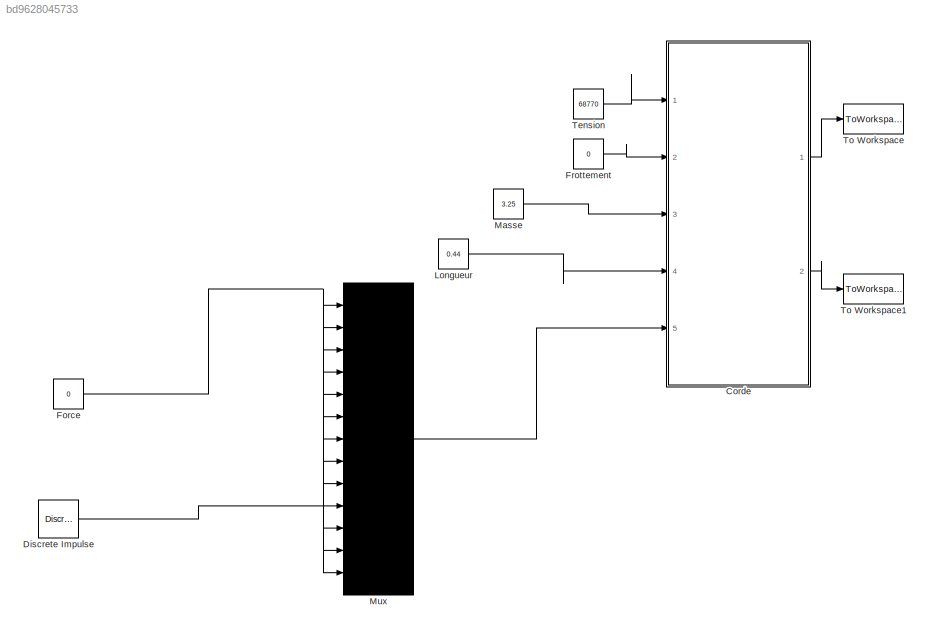
MODEL slx_bd9628045733
KIND model
CONFIG AbsTol = auto
CONFIG EnableMultiTasking = off
CONFIG FixedStep = auto
CONFIG MaxStep = auto
CONFIG MinStep = auto
CONFIG RelTol = 1e-3
CONFIG SampleTimeConstraint = Unconstrained
CONFIG Solver = VariableStepAuto
CONFIG SolverName = VariableStepAuto
CONFIG StartTime = 0.0
CONFIG StopTime = 10.0
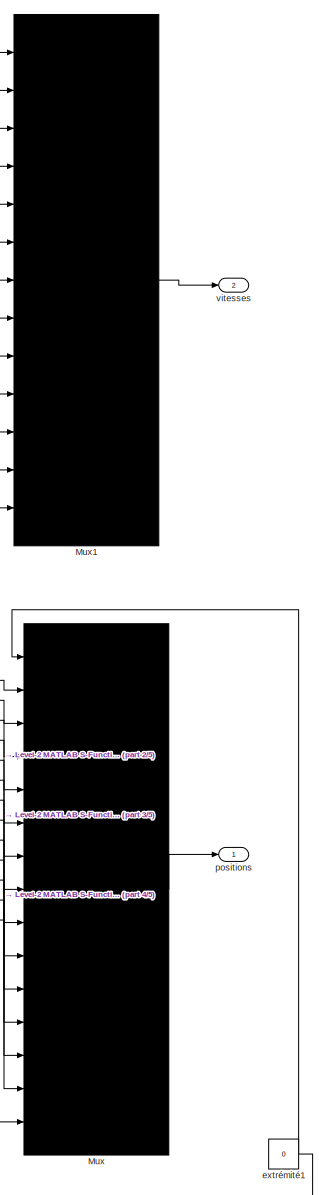
[diagram: Corde - part 1/5, top right region]
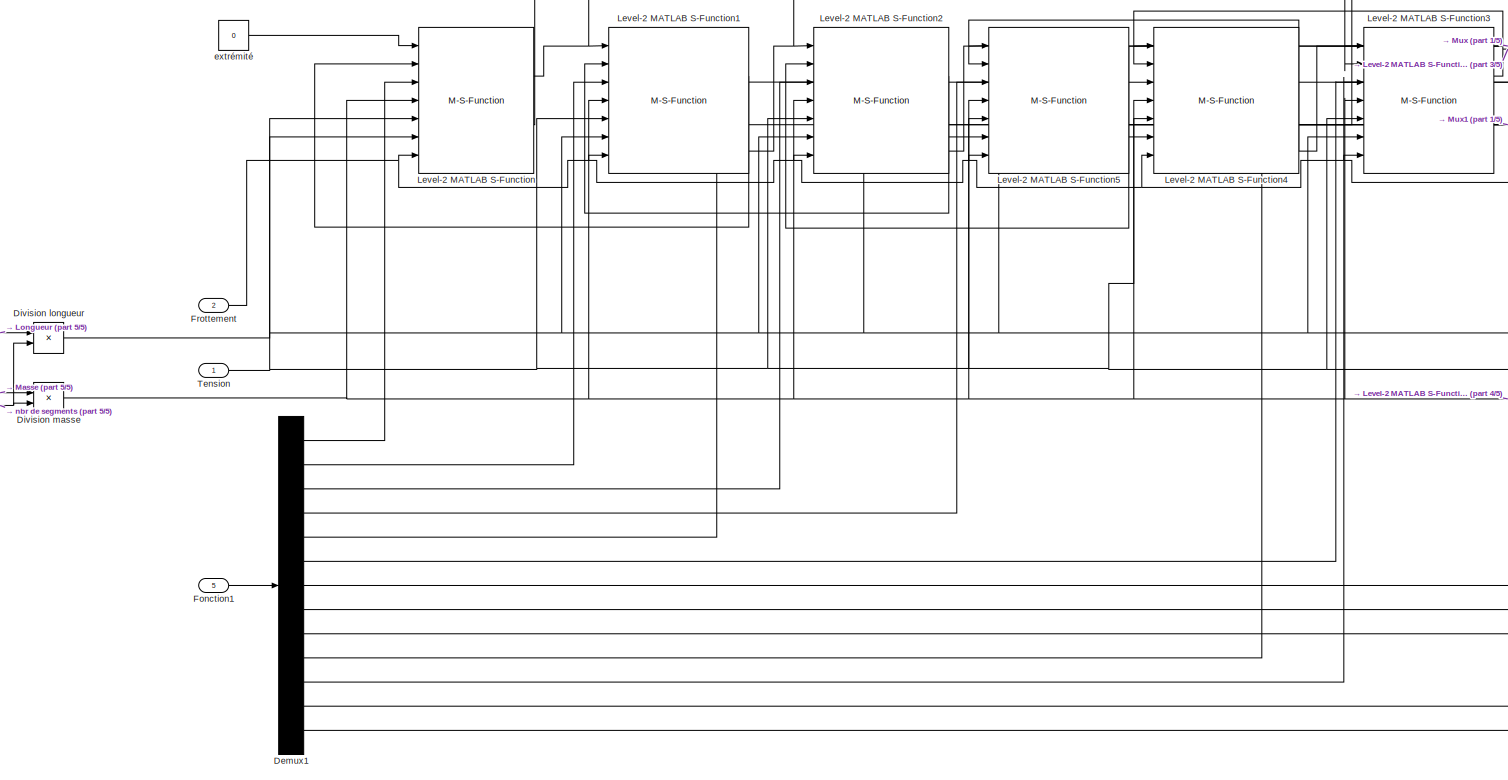
[diagram: Corde - part 2/5, bottom left region]
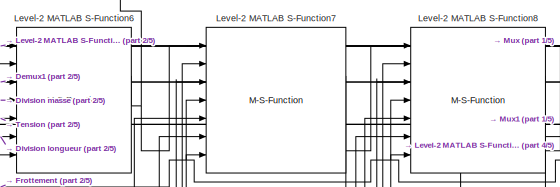
[diagram: Corde - part 3/5, bottom center region]
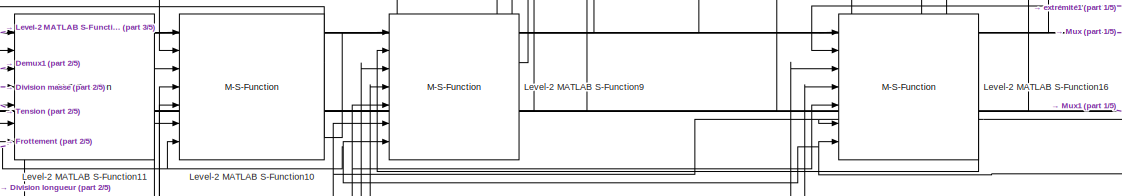
[diagram: Corde - part 4/5, bottom center region]
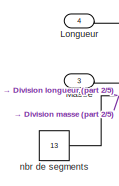
[diagram: Corde - part 5/5, bottom left region]
BLOCK [SubSystem] Corde
  Ports = [5, 2]
  RequestExecContextInheritance = off
BLOCK [Demux] Corde/Demux1
  DisplayOption = bar
  Outputs = 13
  Ports = [1, 13]
BLOCK [Product] Corde/Division longueur
  InputSameDT = off
  Inputs = */
  OutDataTypeStr = Inherit: Inherit via internal rule
  Ports = [2, 1]
  RndMeth = Floor
  SaturateOnIntegerOverflow = off
BLOCK [Product] Corde/Division masse
  InputSameDT = off
  Inputs = */
  OutDataTypeStr = Inherit: Inherit via internal rule
  Ports = [2, 1]
  RndMeth = Floor
  SaturateOnIntegerOverflow = off
BLOCK [Inport] Corde/Fonction1
  IconDisplay = Port number
  Port = 5
BLOCK [Inport] Corde/Frottement
  IconDisplay = Port number
  Port = 2
BLOCK [M-S-Function] Corde/Level-2 MATLAB S-Function
  FunctionName = segment_corde
  Ports = [7, 2]
BLOCK [M-S-Function] Corde/Level-2 MATLAB S-Function1
  FunctionName = segment_corde
  Ports = [7, 2]
BLOCK [M-S-Function] Corde/Level-2 MATLAB S-Function10
  FunctionName = segment_corde
  Ports = [7, 2]
BLOCK [M-S-Function] Corde/Level-2 MATLAB S-Function11
  FunctionName = segment_corde
  Ports = [7, 2]
BLOCK [M-S-Function] Corde/Level-2 MATLAB S-Function16
  FunctionName = segment_corde
  Ports = [7, 2]
BLOCK [M-S-Function] Corde/Level-2 MATLAB S-Function2
  FunctionName = segment_corde
  Ports = [7, 2]
BLOCK [M-S-Function] Corde/Level-2 MATLAB S-Function3
  FunctionName = segment_corde
  Ports = [7, 2]
BLOCK [M-S-Function] Corde/Level-2 MATLAB S-Function4
  FunctionName = segment_corde
  Ports = [7, 2]
BLOCK [M-S-Function] Corde/Level-2 MATLAB S-Function5
  FunctionName = segment_corde
  Ports = [7, 2]
BLOCK [M-S-Function] Corde/Level-2 MATLAB S-Function6
  FunctionName = segment_corde
  Ports = [7, 2]
BLOCK [M-S-Function] Corde/Level-2 MATLAB S-Function7
  FunctionName = segment_corde
  Ports = [7, 2]
BLOCK [M-S-Function] Corde/Level-2 MATLAB S-Function8
  FunctionName = segment_corde
  Ports = [7, 2]
BLOCK [M-S-Function] Corde/Level-2 MATLAB S-Function9
  FunctionName = segment_corde
  Ports = [7, 2]
BLOCK [Inport] Corde/Longueur
  IconDisplay = Port number
  Port = 4
BLOCK [Inport] Corde/Masse
  IconDisplay = Port number
  Port = 3
BLOCK [Mux] Corde/Mux
  DisplayOption = bar
  Inputs = 15
  Ports = [15, 1]
BLOCK [Mux] Corde/Mux1
  DisplayOption = bar
  Inputs = 13
  Ports = [13, 1]
BLOCK [Inport] Corde/Tension
  IconDisplay = Port number
BLOCK [Constant] Corde/extrémité
  Value = 0
BLOCK [Constant] Corde/extrémité1
  Value = 0
BLOCK [Constant] Corde/nbr de segments
  Value = 13
BLOCK [Outport] Corde/positions
  IconDisplay = Port number
  VectorParamsAs1DForOutWhenUnconnected = off
BLOCK [Outport] Corde/vitesses
  IconDisplay = Port number
  Port = 2
  VectorParamsAs1DForOutWhenUnconnected = off
BLOCK [Reference] Discrete Impulse  REF=dspsrcs4/Discrete 
Impulse
  Ports = [0, 1]
  SourceBlock = dspsrcs4/Discrete \nImpulse
  SourceProductBaseCode = DS
  SourceProductName = DSP System Toolbox
  SourceType = Discrete Impulse
BLOCK [Constant] Force
  Value = 0
BLOCK [Constant] Frottement
  Value = 0
BLOCK [Constant] Longueur
  Value = 0.44
BLOCK [Constant] Masse
  Value = 3.25
BLOCK [Mux] Mux
  DisplayOption = bar
  Inputs = 13
  Ports = [13, 1]
BLOCK [Constant] Tension
  Value = 68770
BLOCK [ToWorkspace] To Workspace
  FixptAsFi = on
  MaxDataPoints = inf
  Ports = [1]
  SampleTime = 0.0005
  SaveFormat = Timeseries
  VariableName = position_13
BLOCK [ToWorkspace] To Workspace1
  FixptAsFi = on
  MaxDataPoints = inf
  Ports = [1]
  SampleTime = 0.0005
  SaveFormat = Timeseries
  VariableName = vitesse_13
LINE Corde/Demux1:1 -> Corde/Level-2 MATLAB S-Function:3
LINE Corde/Demux1:10 -> Corde/Level-2 MATLAB S-Function11:3
LINE Corde/Demux1:11 -> Corde/Level-2 MATLAB S-Function10:3
LINE Corde/Demux1:12 -> Corde/Level-2 MATLAB S-Function9:3
LINE Corde/Demux1:13 -> Corde/Level-2 MATLAB S-Function16:3
LINE Corde/Demux1:2 -> Corde/Level-2 MATLAB S-Function1:3
LINE Corde/Demux1:3 -> Corde/Level-2 MATLAB S-Function2:3
LINE Corde/Demux1:4 -> Corde/Level-2 MATLAB S-Function5:3
LINE Corde/Demux1:5 -> Corde/Level-2 MATLAB S-Function4:3
LINE Corde/Demux1:6 -> Corde/Level-2 MATLAB S-Function3:3
LINE Corde/Demux1:7 -> Corde/Level-2 MATLAB S-Function6:3
LINE Corde/Demux1:8 -> Corde/Level-2 MATLAB S-Function7:3
LINE Corde/Demux1:9 -> Corde/Level-2 MATLAB S-Function8:3
NET Corde/Division longueur:1 -> Corde/Level-2 MATLAB S-Function10:6, Corde/Level-2 MATLAB S-Function11:6, Corde/Level-2 MATLAB S-Function16:6, Corde/Level-2 MATLAB S-Function1:6, Corde/Level-2 MATLAB S-Function2:6, Corde/Level-2 MATLAB S-Function3:6, Corde/Level-2 MATLAB S-Function4:6, Corde/Level-2 MATLAB S-Function5:6, Corde/Level-2 MATLAB S-Function6:6, Corde/Level-2 MATLAB S-Function7:6, Corde/Level-2 MATLAB S-Function8:6, Corde/Level-2 MATLAB S-Function9:6, Corde/Level-2 MATLAB S-Function:6
NET Corde/Division masse:1 -> Corde/Level-2 MATLAB S-Function10:4, Corde/Level-2 MATLAB S-Function11:4, Corde/Level-2 MATLAB S-Function16:4, Corde/Level-2 MATLAB S-Function1:4, Corde/Level-2 MATLAB S-Function2:4, Corde/Level-2 MATLAB S-Function3:4, Corde/Level-2 MATLAB S-Function4:4, Corde/Level-2 MATLAB S-Function5:4, Corde/Level-2 MATLAB S-Function6:4, Corde/Level-2 MATLAB S-Function7:4, Corde/Level-2 MATLAB S-Function8:4, Corde/Level-2 MATLAB S-Function9:4, Corde/Level-2 MATLAB S-Function:4
LINE Corde/Fonction1:1 -> Corde/Demux1:1
NET Corde/Frottement:1 -> Corde/Level-2 MATLAB S-Function10:7, Corde/Level-2 MATLAB S-Function11:7, Corde/Level-2 MATLAB S-Function16:7, Corde/Level-2 MATLAB S-Function1:7, Corde/Level-2 MATLAB S-Function2:7, Corde/Level-2 MATLAB S-Function3:7, Corde/Level-2 MATLAB S-Function4:7, Corde/Level-2 MATLAB S-Function5:7, Corde/Level-2 MATLAB S-Function6:7, Corde/Level-2 MATLAB S-Function7:7, Corde/Level-2 MATLAB S-Function8:7, Corde/Level-2 MATLAB S-Function9:7, Corde/Level-2 MATLAB S-Function:7
NET Corde/Level-2 MATLAB S-Function10:1 -> Corde/Level-2 MATLAB S-Function11:2, Corde/Level-2 MATLAB S-Function9:1, Corde/Mux:12
LINE Corde/Level-2 MATLAB S-Function10:2 -> Corde/Mux1:11
NET Corde/Level-2 MATLAB S-Function11:1 -> Corde/Level-2 MATLAB S-Function10:1, Corde/Level-2 MATLAB S-Function8:2, Corde/Mux:11
LINE Corde/Level-2 MATLAB S-Function11:2 -> Corde/Mux1:10
NET Corde/Level-2 MATLAB S-Function16:1 -> Corde/Level-2 MATLAB S-Function9:2, Corde/Mux:14
LINE Corde/Level-2 MATLAB S-Function16:2 -> Corde/Mux1:13
NET Corde/Level-2 MATLAB S-Function1:1 -> Corde/Level-2 MATLAB S-Function2:1, Corde/Level-2 MATLAB S-Function:2, Corde/Mux:3
LINE Corde/Level-2 MATLAB S-Function1:2 -> Corde/Mux1:2
NET Corde/Level-2 MATLAB S-Function2:1 -> Corde/Level-2 MATLAB S-Function1:2, Corde/Level-2 MATLAB S-Function5:1, Corde/Mux:4
LINE Corde/Level-2 MATLAB S-Function2:2 -> Corde/Mux1:3
NET Corde/Level-2 MATLAB S-Function3:1 -> Corde/Level-2 MATLAB S-Function4:2, Corde/Level-2 MATLAB S-Function6:1, Corde/Mux:7
LINE Corde/Level-2 MATLAB S-Function3:2 -> Corde/Mux1:6
NET Corde/Level-2 MATLAB S-Function4:1 -> Corde/Level-2 MATLAB S-Function3:1, Corde/Level-2 MATLAB S-Function5:2, Corde/Mux:6
LINE Corde/Level-2 MATLAB S-Function4:2 -> Corde/Mux1:5
NET Corde/Level-2 MATLAB S-Function5:1 -> Corde/Level-2 MATLAB S-Function2:2, Corde/Level-2 MATLAB S-Function4:1, Corde/Mux:5
LINE Corde/Level-2 MATLAB S-Function5:2 -> Corde/Mux1:4
NET Corde/Level-2 MATLAB S-Function6:1 -> Corde/Level-2 MATLAB S-Function3:2, Corde/Level-2 MATLAB S-Function7:1, Corde/Mux:8
LINE Corde/Level-2 MATLAB S-Function6:2 -> Corde/Mux1:7
NET Corde/Level-2 MATLAB S-Function7:1 -> Corde/Level-2 MATLAB S-Function6:2, Corde/Level-2 MATLAB S-Function8:1, Corde/Mux:9
LINE Corde/Level-2 MATLAB S-Function7:2 -> Corde/Mux1:8
NET Corde/Level-2 MATLAB S-Function8:1 -> Corde/Level-2 MATLAB S-Function11:1, Corde/Level-2 MATLAB S-Function7:2, Corde/Mux:10
LINE Corde/Level-2 MATLAB S-Function8:2 -> Corde/Mux1:9
NET Corde/Level-2 MATLAB S-Function9:1 -> Corde/Level-2 MATLAB S-Function10:2, Corde/Level-2 MATLAB S-Function16:1, Corde/Mux:13
LINE Corde/Level-2 MATLAB S-Function9:2 -> Corde/Mux1:12
NET Corde/Level-2 MATLAB S-Function:1 -> Corde/Level-2 MATLAB S-Function1:1, Corde/Mux:2
LINE Corde/Level-2 MATLAB S-Function:2 -> Corde/Mux1:1
LINE Corde/Longueur:1 -> Corde/Division longueur:1
LINE Corde/Masse:1 -> Corde/Division masse:1
LINE Corde/Mux1:1 -> Corde/vitesses:1
LINE Corde/Mux:1 -> Corde/positions:1
NET Corde/Tension:1 -> Corde/Level-2 MATLAB S-Function10:5, Corde/Level-2 MATLAB S-Function11:5, Corde/Level-2 MATLAB S-Function16:5, Corde/Level-2 MATLAB S-Function1:5, Corde/Level-2 MATLAB S-Function2:5, Corde/Level-2 MATLAB S-Function3:5, Corde/Level-2 MATLAB S-Function4:5, Corde/Level-2 MATLAB S-Function5:5, Corde/Level-2 MATLAB S-Function6:5, Corde/Level-2 MATLAB S-Function7:5, Corde/Level-2 MATLAB S-Function8:5, Corde/Level-2 MATLAB S-Function9:5, Corde/Level-2 MATLAB S-Function:5
NET Corde/extrémité1:1 -> Corde/Level-2 MATLAB S-Function16:2, Corde/Mux:1, Corde/Mux:15
LINE Corde/extrémité:1 -> Corde/Level-2 MATLAB S-Function:1
NET Corde/nbr de segments:1 -> Corde/Division longueur:2, Corde/Division masse:2
LINE Corde:1 -> To Workspace:1
LINE Corde:2 -> To Workspace1:1
LINE Discrete Impulse:1 -> Mux:10
NET Force:1 -> Mux:1, Mux:11, Mux:12, Mux:13, Mux:2, Mux:3, Mux:4, Mux:5, Mux:6, Mux:7, Mux:8, Mux:9
LINE Frottement:1 -> Corde:2
LINE Longueur:1 -> Corde:4
LINE Masse:1 -> Corde:3
LINE Mux:1 -> Corde:5
LINE Tension:1 -> Corde:1
note: NET lines group one-source signal fan-out (src -> all destinations, sorted); 1:1 wires keep LINE
